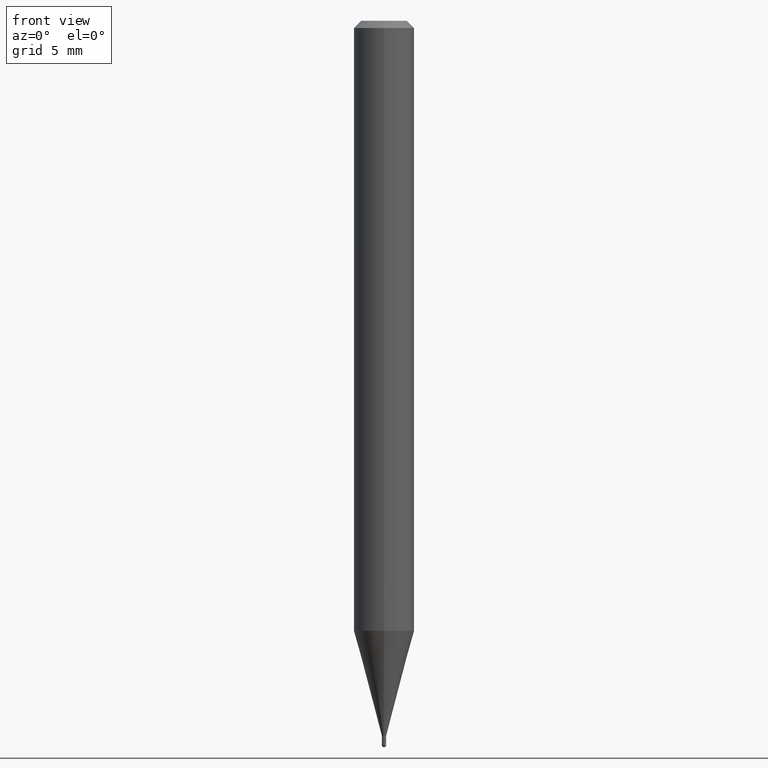
[diagram: clean part render]
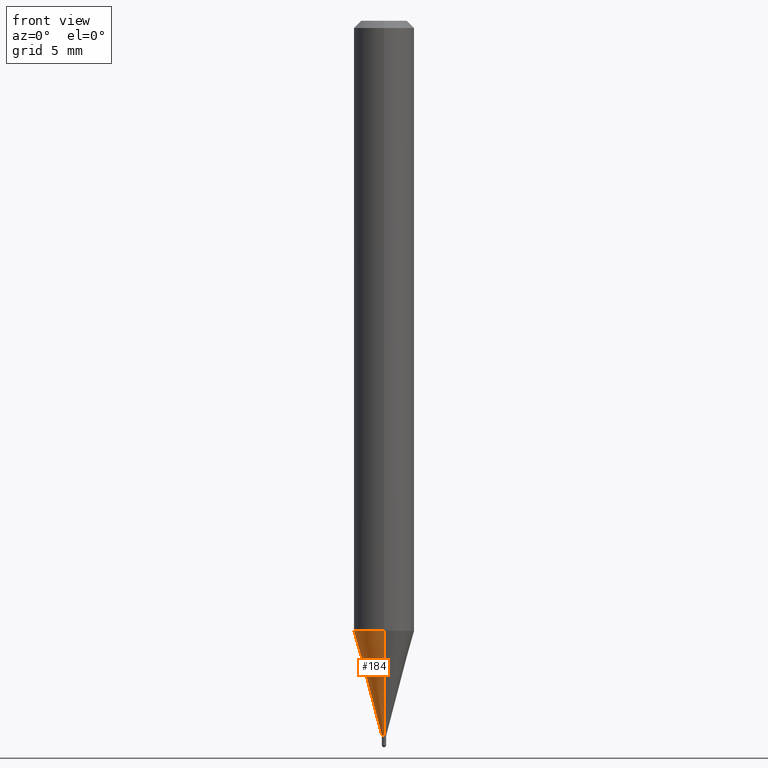
[diagram: same view with one face highlighted and labeled with its STEP entity id]
A machine part, front view. The second image highlights one B-rep face of the part: STEP entity #184.
In plain terms, the highlighted conical surface has half-angle 15 deg.
Its self-contained STEP definition (entity closure, byte-faithful):
#8 = DIRECTION ( 'NONE',  ( -6.982962677686265922E-15, -1.000000000000000000, 0.000000000000000000 ) ) ;
#36 = ORIENTED_EDGE ( 'NONE', *, *, #46, .F. ) ;
#39 = DIRECTION ( 'NONE',  ( -6.982962677686265922E-15, -1.000000000000000000, 4.370956789862821150E-15 ) ) ;
#42 = FACE_OUTER_BOUND ( 'NONE', #497, .T. ) ;
#46 = EDGE_CURVE ( 'NONE', #384, #176, #276, .T. ) ;
#64 = CIRCLE ( 'NONE', #425, 0.004499999999999923332 ) ;
#82 = EDGE_CURVE ( 'NONE', #216, #176, #125, .T. ) ;
#87 = CARTESIAN_POINT ( 'NONE',  ( 2.380318164796668072E-16, 0.004499999999994770336, -1.475999999999999979 ) ) ;
#96 = DIRECTION ( 'NONE',  ( -2.445475389689012778E-29, 3.491471910890885040E-15, 1.000000000000000000 ) ) ;
#102 = EDGE_CURVE ( 'NONE', #173, #216, #64, .T. ) ;
#125 = LINE ( 'NONE', #128, #284 ) ;
#128 = CARTESIAN_POINT ( 'NONE',  ( -3.142333204955156550E-17, -0.004500000000005076328, -1.475999999999999979 ) ) ;
#137 = ORIENTED_EDGE ( 'NONE', *, *, #82, .T. ) ;
#144 = ORIENTED_EDGE ( 'NONE', *, *, #102, .T. ) ;
#173 = VERTEX_POINT ( 'NONE', #87 ) ;
#176 = VERTEX_POINT ( 'NONE', #314 ) ;
#184 = ADVANCED_FACE ( 'NONE', ( #42 ), #248, .T. ) ;
#202 = DIRECTION ( 'NONE',  ( 1.839019923739601499E-15, 0.2588190451025251249, 0.9659258262890670910 ) ) ;
#216 = VERTEX_POINT ( 'NONE', #462 ) ;
#219 = VECTOR ( 'NONE', #202, 39.37007874015748854 ) ;
#244 = LINE ( 'NONE', #492, #219 ) ;
#248 = CONICAL_SURFACE ( 'NONE', #430, 0.004499999999999923332, 0.2617993877991504625 ) ;
#276 = CIRCLE ( 'NONE', #437, 0.06250000000000000000 ) ;
#284 = VECTOR ( 'NONE', #318, 39.37007874015748854 ) ;
#314 = CARTESIAN_POINT ( 'NONE',  ( -4.364351673553608052E-16, -0.06250000000000439926, -1.259541053161005397 ) ) ;
#318 = DIRECTION ( 'NONE',  ( -1.807323732225331323E-15, -0.2588190451025183525, 0.9659258262890689783 ) ) ;
#332 = CARTESIAN_POINT ( 'NONE',  ( 4.440892098500933817E-16, 0.06249999999999561462, -1.259541053161006063 ) ) ;
#344 = DIRECTION ( 'NONE',  ( -6.982962677686265922E-15, -1.000000000000000000, 0.000000000000000000 ) ) ;
#364 = CARTESIAN_POINT ( 'NONE',  ( 3.609521675180982747E-29, -5.153412540474946125E-15, -1.475999999999999979 ) ) ;
#374 = CARTESIAN_POINT ( 'NONE',  ( 3.609521675180982747E-29, -5.153412540474946125E-15, -1.475999999999999979 ) ) ;
#384 = VERTEX_POINT ( 'NONE', #332 ) ;
#407 = EDGE_CURVE ( 'NONE', #173, #384, #244, .T. ) ;
#425 = AXIS2_PLACEMENT_3D ( 'NONE', #364, #484, #8 ) ;
#427 = DIRECTION ( 'NONE',  ( -2.445475389689012778E-29, 3.491471910890885040E-15, 1.000000000000000000 ) ) ;
#430 = AXIS2_PLACEMENT_3D ( 'NONE', #374, #96, #344 ) ;
#437 = AXIS2_PLACEMENT_3D ( 'NONE', #466, #427, #39 ) ;
#462 = CARTESIAN_POINT ( 'NONE',  ( -3.142333204955156550E-17, -0.004500000000005076328, -1.475999999999999979 ) ) ;
#466 = CARTESIAN_POINT ( 'NONE',  ( 3.080176647808220565E-29, -4.397652207725574751E-15, -1.259541053161005841 ) ) ;
#484 = DIRECTION ( 'NONE',  ( -2.445475389689012778E-29, 3.491471910890885040E-15, 1.000000000000000000 ) ) ;
#492 = CARTESIAN_POINT ( 'NONE',  ( 3.197442310924005399E-17, 0.004499999999994770336, -1.475999999999999979 ) ) ;
#497 = EDGE_LOOP ( 'NONE', ( #508, #144, #137, #36 ) ) ;
#508 = ORIENTED_EDGE ( 'NONE', *, *, #407, .F. ) ;